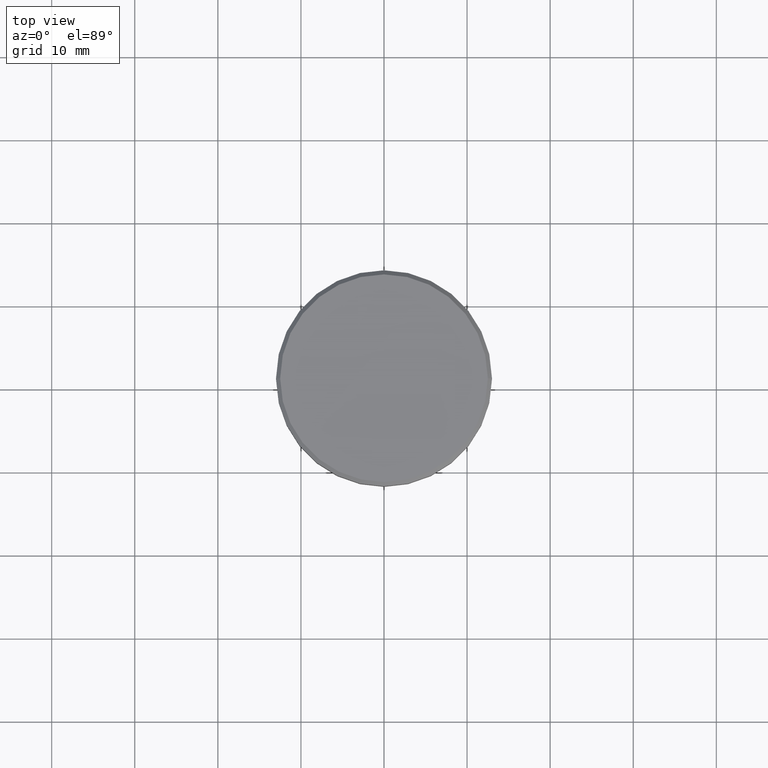
[diagram: clean part render]
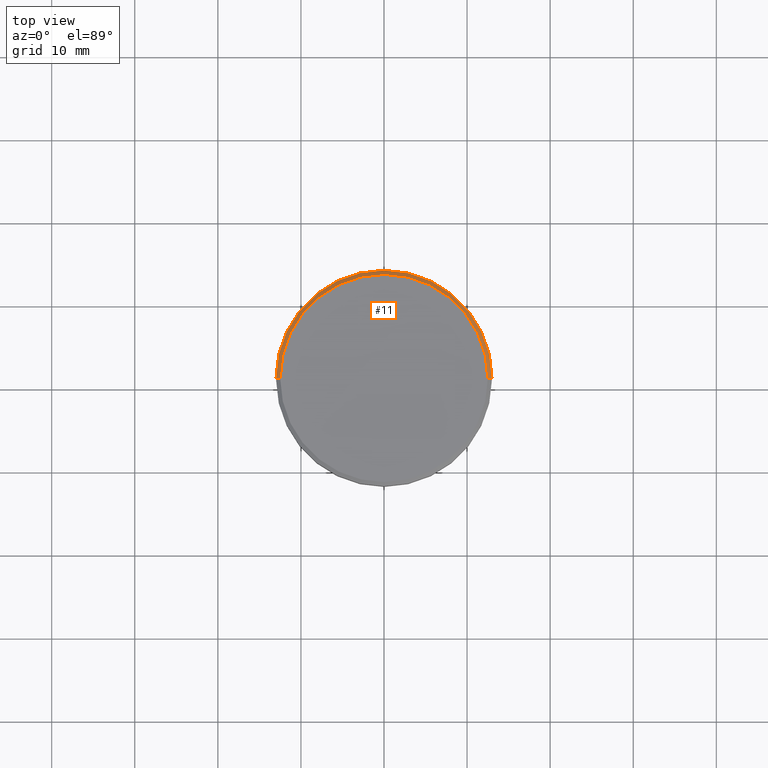
[diagram: same view with one face highlighted and labeled with its STEP entity id]
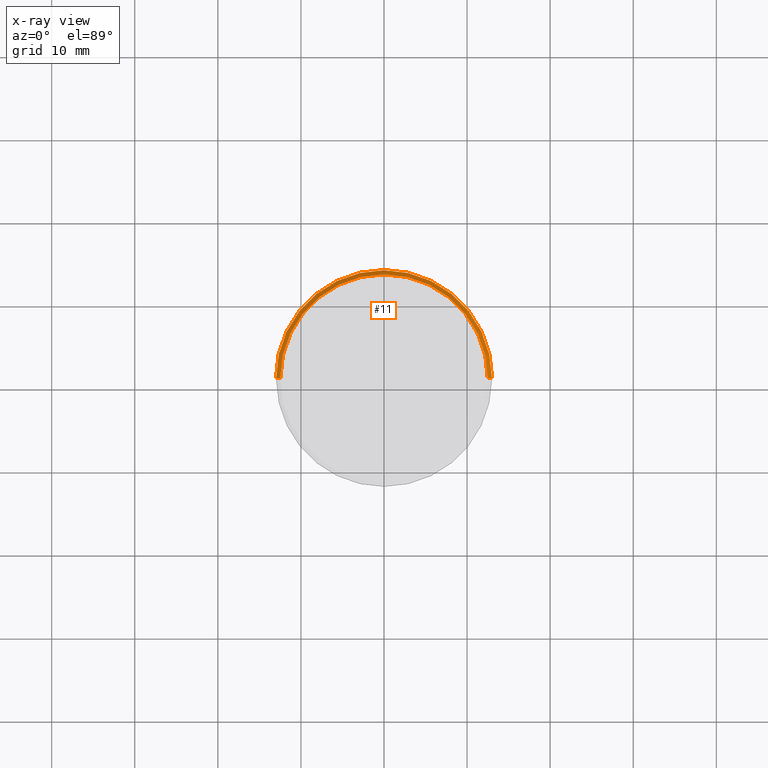
[diagram: x-ray of the same camera — body ghosted, the highlighted face saturated]
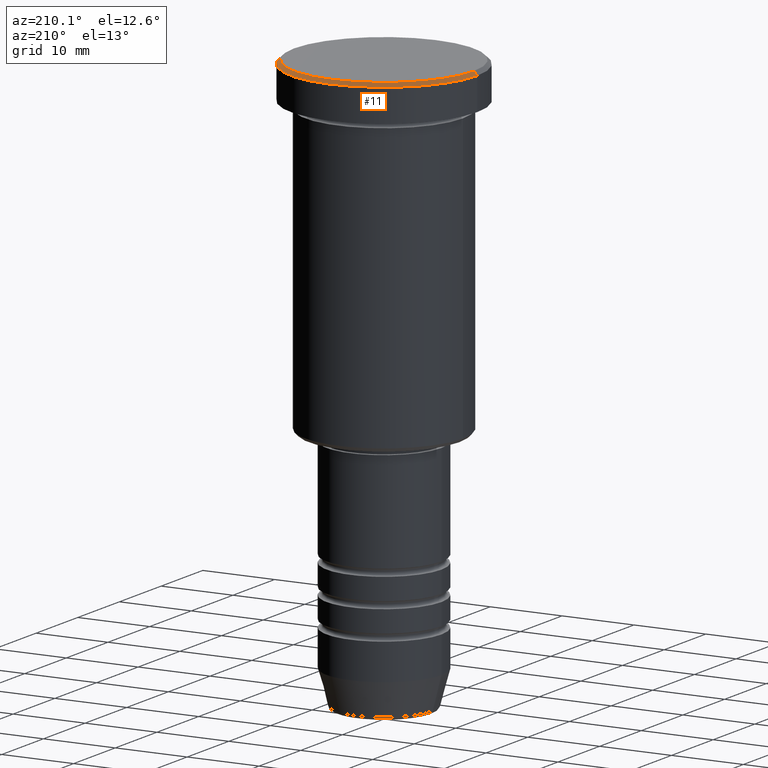
[diagram: same view with one face highlighted and labeled with its STEP entity id]
A machine part, top view. The second image highlights one B-rep face of the part: STEP entity #11.
The next image is the same camera in x-ray: the body ghosted, the highlighted face saturated — about 0% of this face is hidden behind the body in this view.
A second angle (auxiliary view) of the same face is appended — the face is thin or edge-on in the first view.
In plain terms, the highlighted conical surface has half-angle 45 deg.
Its self-contained STEP definition (entity closure, byte-faithful):
#11 = ADVANCED_FACE ( 'NONE', ( #444 ), #869, .T. ) ;
#30 = CARTESIAN_POINT ( 'NONE',  ( -13.00000000000000000, 1.592040838891559095E-15, -0.4999999999999796274 ) ) ;
#65 = ORIENTED_EDGE ( 'NONE', *, *, #360, .T. ) ;
#108 = CARTESIAN_POINT ( 'NONE',  ( 0.000000000000000000, 0.000000000000000000, 0.000000000000000000 ) ) ;
#123 = CARTESIAN_POINT ( 'NONE',  ( 12.50000000000002487, 1.561424668912876886E-15, 0.000000000000000000 ) ) ;
#131 = DIRECTION ( 'NONE',  ( 1.000000000000000000, 0.000000000000000000, 0.000000000000000000 ) ) ;
#134 = EDGE_CURVE ( 'NONE', #610, #379, #982, .T. ) ;
#222 = VECTOR ( 'NONE', #601, 1000.000000000000000 ) ;
#225 = LINE ( 'NONE', #594, #222 ) ;
#251 = EDGE_CURVE ( 'NONE', #379, #597, #225, .T. ) ;
#257 = AXIS2_PLACEMENT_3D ( 'NONE', #893, #635, #711 ) ;
#276 = DIRECTION ( 'NONE',  ( 0.000000000000000000, 0.000000000000000000, -1.000000000000000000 ) ) ;
#360 = EDGE_CURVE ( 'NONE', #610, #1156, #780, .T. ) ;
#379 = VERTEX_POINT ( 'NONE', #975 ) ;
#380 = AXIS2_PLACEMENT_3D ( 'NONE', #623, #276, #541 ) ;
#384 = DIRECTION ( 'NONE',  ( -0.000000000000000000, -0.000000000000000000, 1.000000000000000000 ) ) ;
#402 = DIRECTION ( 'NONE',  ( 0.7071067811865439090, 8.659560562354888485E-17, -0.7071067811865512365 ) ) ;
#410 = EDGE_LOOP ( 'NONE', ( #419, #65, #587, #534 ) ) ;
#419 = ORIENTED_EDGE ( 'NONE', *, *, #134, .F. ) ;
#422 = CARTESIAN_POINT ( 'NONE',  ( 12.50000000000002487, 1.530808498934194480E-15, 0.000000000000000000 ) ) ;
#430 = EDGE_CURVE ( 'NONE', #597, #1156, #446, .T. ) ;
#444 = FACE_OUTER_BOUND ( 'NONE', #410, .T. ) ;
#446 = CIRCLE ( 'NONE', #257, 13.00000000000000000 ) ;
#534 = ORIENTED_EDGE ( 'NONE', *, *, #251, .F. ) ;
#541 = DIRECTION ( 'NONE',  ( -1.000000000000000000, 0.000000000000000000, 0.000000000000000000 ) ) ;
#587 = ORIENTED_EDGE ( 'NONE', *, *, #430, .F. ) ;
#594 = CARTESIAN_POINT ( 'NONE',  ( -12.50000000000002487, 0.000000000000000000, 0.000000000000000000 ) ) ;
#597 = VERTEX_POINT ( 'NONE', #30 ) ;
#601 = DIRECTION ( 'NONE',  ( -0.7071067811865439090, 0.000000000000000000, -0.7071067811865512365 ) ) ;
#605 = VECTOR ( 'NONE', #402, 1000.000000000000000 ) ;
#610 = VERTEX_POINT ( 'NONE', #123 ) ;
#623 = CARTESIAN_POINT ( 'NONE',  ( 0.000000000000000000, 0.000000000000000000, 0.000000000000000000 ) ) ;
#635 = DIRECTION ( 'NONE',  ( 0.000000000000000000, 0.000000000000000000, -1.000000000000000000 ) ) ;
#711 = DIRECTION ( 'NONE',  ( 1.000000000000000000, 0.000000000000000000, 0.000000000000000000 ) ) ;
#724 = AXIS2_PLACEMENT_3D ( 'NONE', #108, #384, #131 ) ;
#770 = CARTESIAN_POINT ( 'NONE',  ( 13.00000000000000000, 0.000000000000000000, -0.4999999999999796274 ) ) ;
#780 = LINE ( 'NONE', #422, #605 ) ;
#869 = CONICAL_SURFACE ( 'NONE', #380, 12.50000000000002487, 0.7853981633974431720 ) ;
#893 = CARTESIAN_POINT ( 'NONE',  ( 0.000000000000000000, 0.000000000000000000, -0.4999999999999796274 ) ) ;
#975 = CARTESIAN_POINT ( 'NONE',  ( -12.50000000000002487, 0.000000000000000000, 0.000000000000000000 ) ) ;
#982 = CIRCLE ( 'NONE', #724, 12.50000000000002487 ) ;
#1156 = VERTEX_POINT ( 'NONE', #770 ) ;